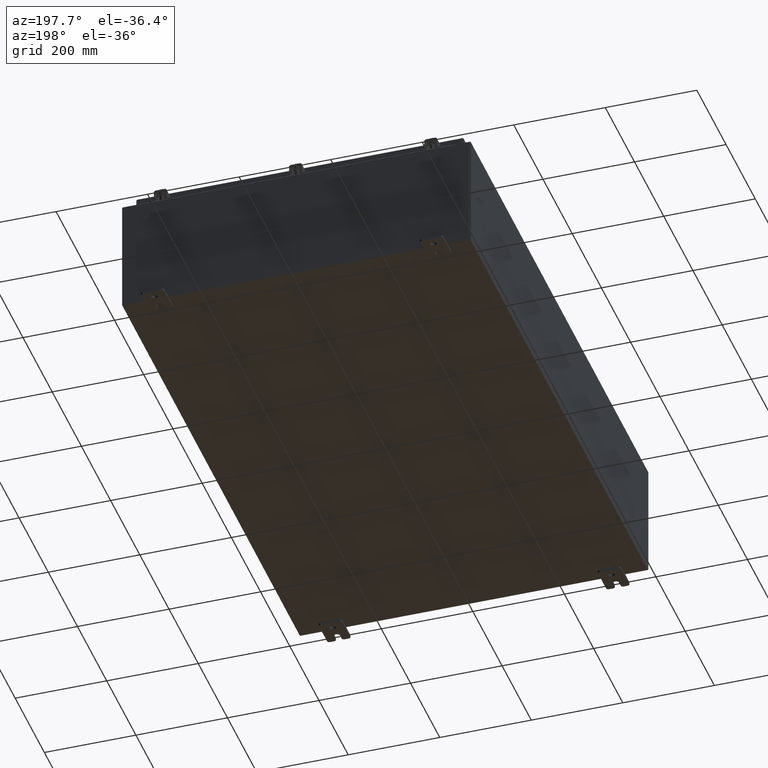
[diagram: clean part render]
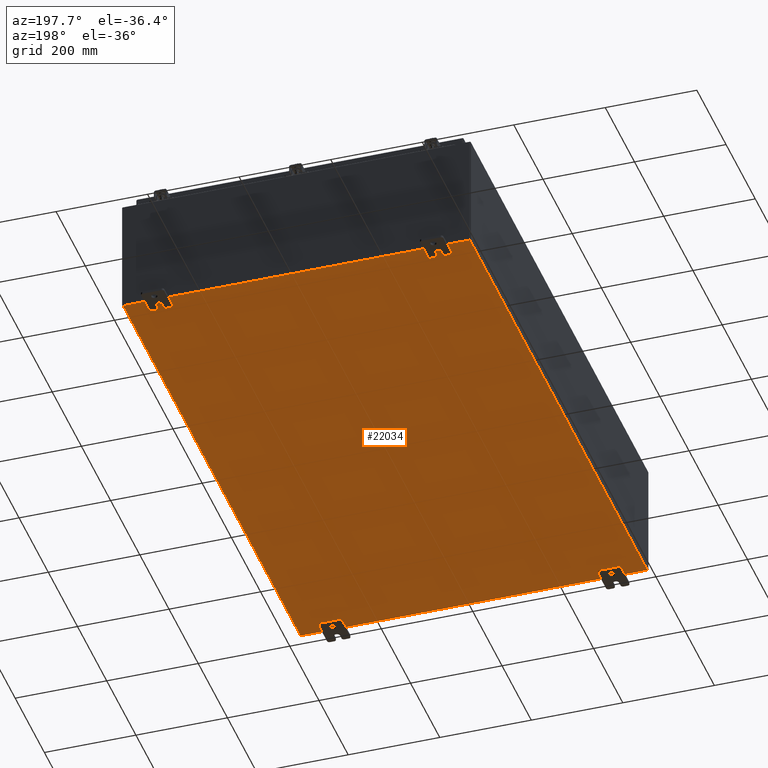
[diagram: same view with one face highlighted and labeled with its STEP entity id]
A machine part, auxiliary view. The second image highlights one B-rep face of the part: STEP entity #22034.
In plain terms, the highlighted planar face has unit normal (0, 0, -1).
Its self-contained STEP definition (entity closure, byte-faithful):
#2820 = DIRECTION ( 'NONE',  ( 1.000000000000000000, 1.456985596620940400E-016, 0.0000000000000000000 ) ) ;
#2917 = CARTESIAN_POINT ( 'NONE',  ( -15.00000000000000400, -23.92530000000000000, -0.07470000000000000300 ) ) ;
#4033 = PLANE ( 'NONE',  #44698 ) ;
#4897 = EDGE_LOOP ( 'NONE', ( #31328, #45772, #13137, #47810 ) ) ;
#5085 = LINE ( 'NONE', #2917, #46613 ) ;
#6902 = EDGE_CURVE ( 'NONE', #40319, #32258, #15776, .T. ) ;
#7212 = EDGE_CURVE ( 'NONE', #33578, #32258, #5085, .T. ) ;
#8123 = DIRECTION ( 'NONE',  ( -1.000000000000000000, 0.0000000000000000000, -0.0000000000000000000 ) ) ;
#11147 = CARTESIAN_POINT ( 'NONE',  ( 14.91229999999999800, 23.92530000000000000, -0.07470000000000300000 ) ) ;
#11363 = DIRECTION ( 'NONE',  ( -0.0000000000000000000, -1.000000000000000000, 8.208677865577646300E-017 ) ) ;
#13137 = ORIENTED_EDGE ( 'NONE', *, *, #41227, .F. ) ;
#14198 = VECTOR ( 'NONE', #36661, 39.37007874015748100 ) ;
#15776 = LINE ( 'NONE', #11147, #35899 ) ;
#19738 = CARTESIAN_POINT ( 'NONE',  ( -15.00000000000000400, 23.92530000000000400, -0.07470000000000000300 ) ) ;
#22034 = ADVANCED_FACE ( 'NONE', ( #50629 ), #4033, .T. ) ;
#22254 = VECTOR ( 'NONE', #31826, 39.37007874015748100 ) ;
#23519 = LINE ( 'NONE', #19738, #22254 ) ;
#24174 = CARTESIAN_POINT ( 'NONE',  ( 0.0000000000000000000, 0.0000000000000000000, -0.07470000000000000300 ) ) ;
#24932 = LINE ( 'NONE', #40474, #14198 ) ;
#28822 = EDGE_CURVE ( 'NONE', #33578, #37249, #24932, .T. ) ;
#31328 = ORIENTED_EDGE ( 'NONE', *, *, #7212, .F. ) ;
#31826 = DIRECTION ( 'NONE',  ( -1.000000000000000000, -0.0000000000000000000, -0.0000000000000000000 ) ) ;
#32258 = VERTEX_POINT ( 'NONE', #47721 ) ;
#32649 = CARTESIAN_POINT ( 'NONE',  ( -14.91230000000000200, -23.92529999999998200, -0.07469999999999994700 ) ) ;
#33578 = VERTEX_POINT ( 'NONE', #32649 ) ;
#35899 = VECTOR ( 'NONE', #11363, 39.37007874015748100 ) ;
#36661 = DIRECTION ( 'NONE',  ( -0.0000000000000000000, 1.000000000000000000, -0.0000000000000000000 ) ) ;
#37249 = VERTEX_POINT ( 'NONE', #39997 ) ;
#39997 = CARTESIAN_POINT ( 'NONE',  ( -14.91230000000000200, 23.92529999999998900, -0.07470000000000000300 ) ) ;
#40106 = DIRECTION ( 'NONE',  ( 0.0000000000000000000, 0.0000000000000000000, -1.000000000000000000 ) ) ;
#40319 = VERTEX_POINT ( 'NONE', #42064 ) ;
#40474 = CARTESIAN_POINT ( 'NONE',  ( -14.91230000000000200, -23.92529999999998900, -0.07469999999999994700 ) ) ;
#41227 = EDGE_CURVE ( 'NONE', #40319, #37249, #23519, .T. ) ;
#42064 = CARTESIAN_POINT ( 'NONE',  ( 14.91229999999999800, 23.92529999999998900, -0.07470000000000300000 ) ) ;
#44698 = AXIS2_PLACEMENT_3D ( 'NONE', #24174, #40106, #8123 ) ;
#45772 = ORIENTED_EDGE ( 'NONE', *, *, #28822, .T. ) ;
#46613 = VECTOR ( 'NONE', #2820, 39.37007874015748100 ) ;
#47721 = CARTESIAN_POINT ( 'NONE',  ( 14.91229999999999800, -23.92529999999999600, -0.07470000000000000300 ) ) ;
#47810 = ORIENTED_EDGE ( 'NONE', *, *, #6902, .T. ) ;
#50629 = FACE_OUTER_BOUND ( 'NONE', #4897, .T. ) ;